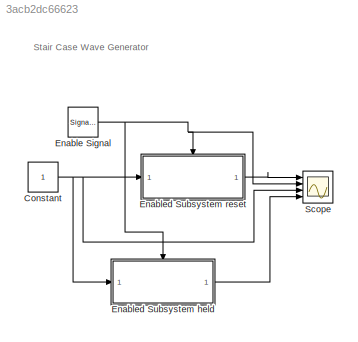
MODEL slx_3acb2dc66623
KIND model
CONFIG AbsTol = auto
CONFIG EnableMultiTasking = off
CONFIG FixedStep = 1
CONFIG MaxStep = 0.01
CONFIG MinStep = auto
CONFIG RelTol = 1e-3
CONFIG SampleTimeConstraint = Unconstrained
CONFIG SolverName = VariableStepAuto
CONFIG StartTime = 0.0
CONFIG StopTime = 1
BLOCK [Constant] Constant
BLOCK [SignalGenerator] Enable Signal
  Frequency = 3
  Ports = [0, 1]
  WaveForm = square
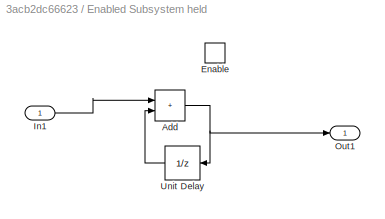
BLOCK [SubSystem] Enabled Subsystem held
  Ports = [1, 1, 1]
  RequestExecContextInheritance = off
  TreatAsAtomicUnit = on
BLOCK [Sum] Enabled Subsystem held/Add
  IconShape = rectangular
  Ports = [2, 1]
BLOCK [EnablePort] Enabled Subsystem held/Enable
  Ports = []
BLOCK [Inport] Enabled Subsystem held/In1
BLOCK [Outport] Enabled Subsystem held/Out1
BLOCK [UnitDelay] Enabled Subsystem held/Unit Delay
  HasFrameUpgradeWarning = on
  NameLocation = top
  SampleTime = -1
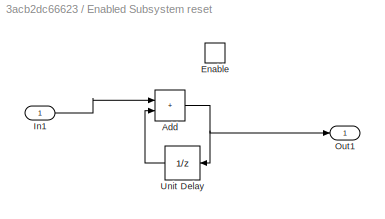
BLOCK [SubSystem] Enabled Subsystem reset
  Ports = [1, 1, 1]
  RequestExecContextInheritance = off
  TreatAsAtomicUnit = on
BLOCK [Sum] Enabled Subsystem reset/Add
  IconShape = rectangular
  Ports = [2, 1]
BLOCK [EnablePort] Enabled Subsystem reset/Enable
  Ports = []
  StatesWhenEnabling = reset
BLOCK [Inport] Enabled Subsystem reset/In1
BLOCK [Outport] Enabled Subsystem reset/Out1
BLOCK [UnitDelay] Enabled Subsystem reset/Unit Delay
  HasFrameUpgradeWarning = on
  NameLocation = top
  SampleTime = -1
BLOCK [Scope] Scope
  Floating = off
  NumInputPorts = 4
  Ports = [4]
  ScopeSpecificationString = Simulink.scopes.TimeScopeBlockCfg('CurrentConfiguration', extmgr.ConfigurationSet(extmgr.Configuration('Core','General UI',true),extmgr.Configuration('Core','Source UI',true),extmgr.Configuration('Sources','WiredSimulink',true),extmgr.Configuration('Visuals','Time Domain',true,'SerializedDisplays',{struct('MinYLimReal','-7.375','MaxYLimReal','56.375','YLabelReal','','MinYLimMag','0.00000','MaxYLim...<+1533ch>
ANNOTATION (root): Stair Case Wave Generator
NET Constant:1 -> Enabled Subsystem held:1, Enabled Subsystem reset:1, Scope:3
NET Enable Signal:1 -> Enabled Subsystem held:enable, Enabled Subsystem reset:enable, Scope:2
NET Enabled Subsystem held/Add:1 -> Enabled Subsystem held/Out1:1, Enabled Subsystem held/Unit Delay:1
LINE Enabled Subsystem held/In1:1 -> Enabled Subsystem held/Add:1
LINE Enabled Subsystem held/Unit Delay:1 -> Enabled Subsystem held/Add:2
LINE Enabled Subsystem held:1 -> Scope:4
NET Enabled Subsystem reset/Add:1 -> Enabled Subsystem reset/Out1:1, Enabled Subsystem reset/Unit Delay:1
LINE Enabled Subsystem reset/In1:1 -> Enabled Subsystem reset/Add:1
LINE Enabled Subsystem reset/Unit Delay:1 -> Enabled Subsystem reset/Add:2
LINE Enabled Subsystem reset:1 -> Scope:1
note: NET lines group one-source signal fan-out (src -> all destinations, sorted); 1:1 wires keep LINE
